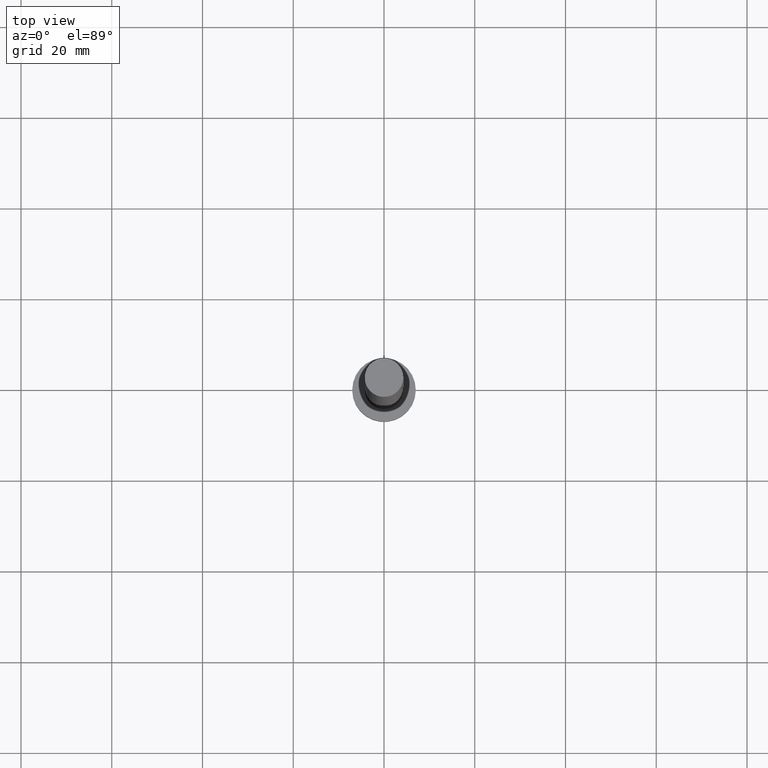
[diagram: clean part render]
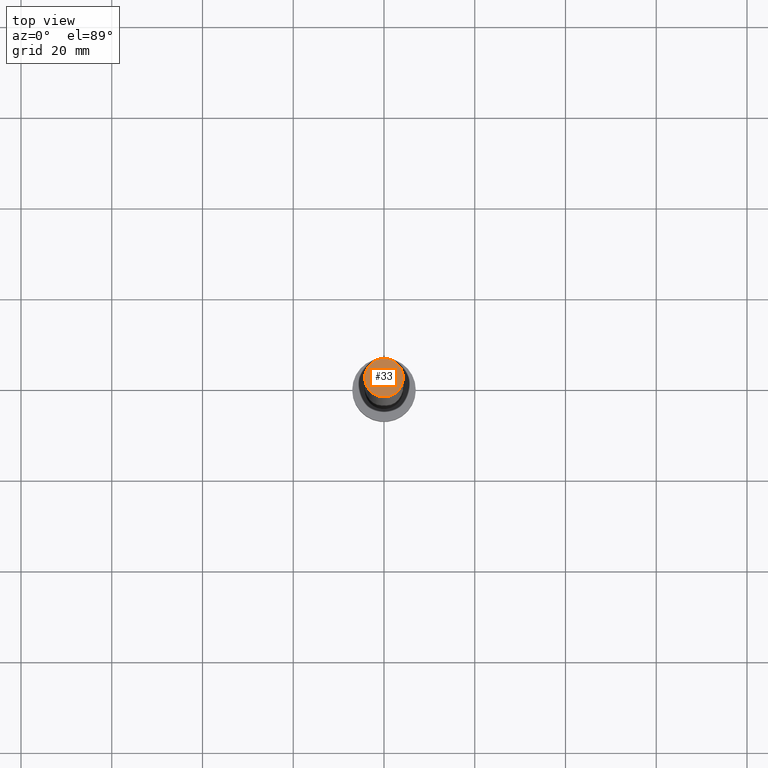
[diagram: same view with one face highlighted and labeled with its STEP entity id]
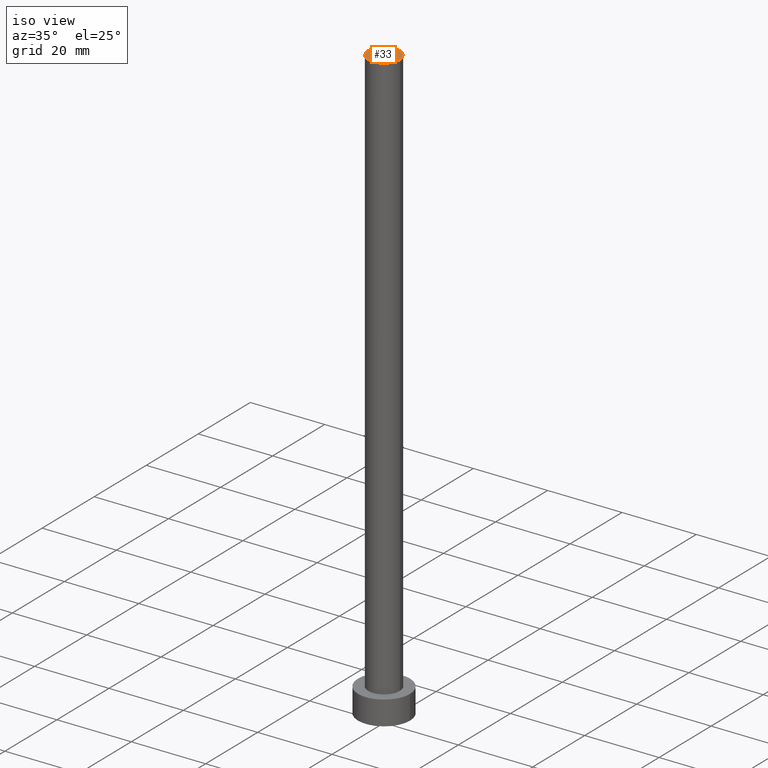
[diagram: same view with one face highlighted and labeled with its STEP entity id]
A machine part, top view. The second image highlights one B-rep face of the part: STEP entity #33.
A second angle (iso view) of the same face is appended — the face is thin or edge-on in the first view.
In plain terms, the highlighted planar face has unit normal (0, 0, 1).
Its self-contained STEP definition (entity closure, byte-faithful):
#1 = DIRECTION ( 'NONE',  ( 0.000000000000000000, 0.000000000000000000, 1.000000000000000000 ) ) ;
#8 = CIRCLE ( 'NONE', #207, 4.250000000000000000 ) ;
#23 = VERTEX_POINT ( 'NONE', #132 ) ;
#24 = EDGE_LOOP ( 'NONE', ( #127, #149 ) ) ;
#33 = ADVANCED_FACE ( 'NONE', ( #209 ), #251, .T. ) ;
#47 = VERTEX_POINT ( 'NONE', #67 ) ;
#67 = CARTESIAN_POINT ( 'NONE',  ( -4.250000000000000000, 0.000000000000000000, 160.0000000000000000 ) ) ;
#91 = EDGE_CURVE ( 'NONE', #47, #23, #173, .T. ) ;
#93 = CARTESIAN_POINT ( 'NONE',  ( 0.000000000000000000, 0.000000000000000000, 160.0000000000000000 ) ) ;
#98 = AXIS2_PLACEMENT_3D ( 'NONE', #114, #129, #205 ) ;
#99 = DIRECTION ( 'NONE',  ( 0.000000000000000000, 0.000000000000000000, 1.000000000000000000 ) ) ;
#114 = CARTESIAN_POINT ( 'NONE',  ( 0.000000000000000000, 0.000000000000000000, 160.0000000000000000 ) ) ;
#124 = DIRECTION ( 'NONE',  ( 1.000000000000000000, 0.000000000000000000, 0.000000000000000000 ) ) ;
#127 = ORIENTED_EDGE ( 'NONE', *, *, #91, .T. ) ;
#129 = DIRECTION ( 'NONE',  ( 0.000000000000000000, 0.000000000000000000, 1.000000000000000000 ) ) ;
#132 = CARTESIAN_POINT ( 'NONE',  ( 4.250000000000000000, 5.204748896376250699E-16, 160.0000000000000000 ) ) ;
#149 = ORIENTED_EDGE ( 'NONE', *, *, #161, .T. ) ;
#161 = EDGE_CURVE ( 'NONE', #23, #47, #8, .T. ) ;
#173 = CIRCLE ( 'NONE', #240, 4.250000000000000000 ) ;
#196 = DIRECTION ( 'NONE',  ( 1.000000000000000000, 0.000000000000000000, 0.000000000000000000 ) ) ;
#198 = CARTESIAN_POINT ( 'NONE',  ( 0.000000000000000000, 0.000000000000000000, 160.0000000000000000 ) ) ;
#205 = DIRECTION ( 'NONE',  ( 1.000000000000000000, 0.000000000000000000, -0.000000000000000000 ) ) ;
#207 = AXIS2_PLACEMENT_3D ( 'NONE', #198, #1, #124 ) ;
#209 = FACE_OUTER_BOUND ( 'NONE', #24, .T. ) ;
#240 = AXIS2_PLACEMENT_3D ( 'NONE', #93, #99, #196 ) ;
#251 = PLANE ( 'NONE',  #98 ) ;